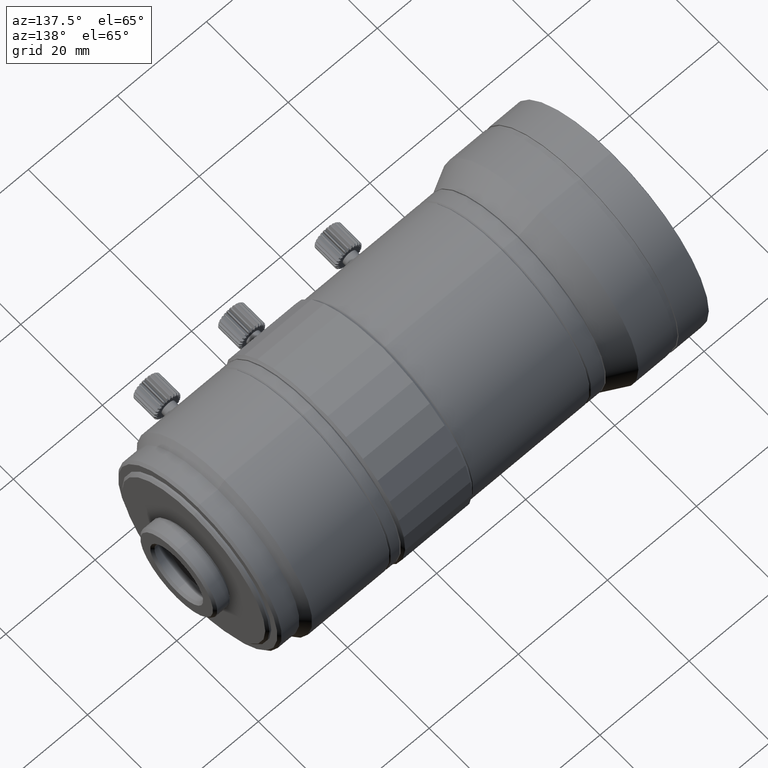
[diagram: clean part render]
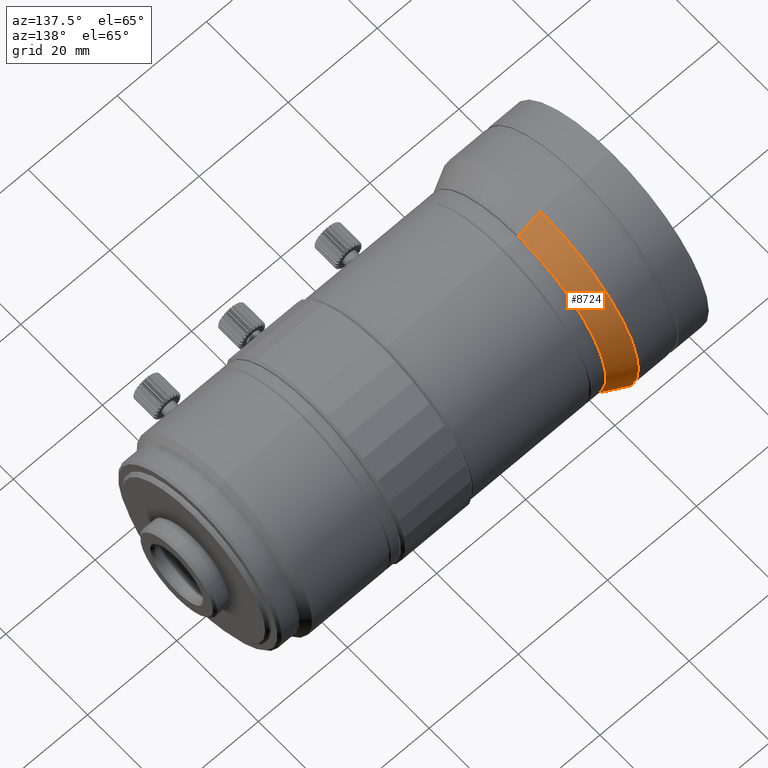
[diagram: same view with one face highlighted and labeled with its STEP entity id]
A machine part, auxiliary view. The second image highlights one B-rep face of the part: STEP entity #8724.
In plain terms, the highlighted conical surface has half-angle 26.565 deg.
Its self-contained STEP definition (entity closure, byte-faithful):
#15 = AXIS2_PLACEMENT_3D ( 'NONE', #1386, #14181, #7012 ) ;
#168 = VECTOR ( 'NONE', #11317, 1000.000000000000000 ) ;
#984 = LINE ( 'NONE', #3070, #168 ) ;
#994 = CIRCLE ( 'NONE', #9368, 21.49999999999999289 ) ;
#1386 = CARTESIAN_POINT ( 'NONE',  ( -76.62999999999998124, 0.000000000000000000, 0.000000000000000000 ) ) ;
#1527 = DIRECTION ( 'NONE',  ( 0.000000000000000000, 0.000000000000000000, -1.000000000000000000 ) ) ;
#1582 = ORIENTED_EDGE ( 'NONE', *, *, #2226, .F. ) ;
#1746 = VERTEX_POINT ( 'NONE', #8385 ) ;
#2226 = EDGE_CURVE ( 'NONE', #14681, #11903, #13434, .T. ) ;
#3070 = CARTESIAN_POINT ( 'NONE',  ( -76.62999999999998124, 2.632990618166808052E-15, -21.49999999999999289 ) ) ;
#4273 = CARTESIAN_POINT ( 'NONE',  ( -81.63000000000000966, 0.000000000000000000, 23.99999999999999645 ) ) ;
#4339 = CARTESIAN_POINT ( 'NONE',  ( -81.63000000000000966, 0.000000000000000000, 0.000000000000000000 ) ) ;
#4833 = CARTESIAN_POINT ( 'NONE',  ( -76.62999999999998124, 0.000000000000000000, 0.000000000000000000 ) ) ;
#4877 = ORIENTED_EDGE ( 'NONE', *, *, #7840, .F. ) ;
#5422 = CARTESIAN_POINT ( 'NONE',  ( -76.62999999999998124, 0.000000000000000000, 21.49999999999999289 ) ) ;
#6662 = CONICAL_SURFACE ( 'NONE', #15, 21.49999999999999289, 0.4636476090008044282 ) ;
#7012 = DIRECTION ( 'NONE',  ( 0.000000000000000000, 0.000000000000000000, 1.000000000000000000 ) ) ;
#7559 = CIRCLE ( 'NONE', #13477, 23.99999999999999645 ) ;
#7807 = DIRECTION ( 'NONE',  ( 0.000000000000000000, 0.000000000000000000, -1.000000000000000000 ) ) ;
#7840 = EDGE_CURVE ( 'NONE', #8382, #14681, #994, .T. ) ;
#8242 = FACE_OUTER_BOUND ( 'NONE', #13085, .T. ) ;
#8382 = VERTEX_POINT ( 'NONE', #14134 ) ;
#8385 = CARTESIAN_POINT ( 'NONE',  ( -81.63000000000000966, 2.939152317953647500E-15, -23.99999999999999645 ) ) ;
#8482 = VECTOR ( 'NONE', #13666, 1000.000000000000000 ) ;
#8724 = ADVANCED_FACE ( 'NONE', ( #8242 ), #6662, .T. ) ;
#9368 = AXIS2_PLACEMENT_3D ( 'NONE', #4833, #11926, #1527 ) ;
#9895 = DIRECTION ( 'NONE',  ( 1.000000000000000000, -0.000000000000000000, -0.000000000000000000 ) ) ;
#11317 = DIRECTION ( 'NONE',  ( -0.8944271909999166326, 5.476786982642007755E-17, -0.4472135954999564289 ) ) ;
#11389 = CARTESIAN_POINT ( 'NONE',  ( -76.62999999999998124, 0.000000000000000000, 21.49999999999999289 ) ) ;
#11413 = ORIENTED_EDGE ( 'NONE', *, *, #13459, .T. ) ;
#11903 = VERTEX_POINT ( 'NONE', #4273 ) ;
#11926 = DIRECTION ( 'NONE',  ( 1.000000000000000000, -0.000000000000000000, -0.000000000000000000 ) ) ;
#13085 = EDGE_LOOP ( 'NONE', ( #4877, #11413, #14587, #1582 ) ) ;
#13434 = LINE ( 'NONE', #5422, #8482 ) ;
#13459 = EDGE_CURVE ( 'NONE', #8382, #1746, #984, .T. ) ;
#13477 = AXIS2_PLACEMENT_3D ( 'NONE', #4339, #9895, #7807 ) ;
#13666 = DIRECTION ( 'NONE',  ( -0.8944271909999166326, 0.000000000000000000, 0.4472135954999564289 ) ) ;
#13705 = EDGE_CURVE ( 'NONE', #1746, #11903, #7559, .T. ) ;
#14134 = CARTESIAN_POINT ( 'NONE',  ( -76.62999999999998124, 2.786071468060227776E-15, -21.49999999999999289 ) ) ;
#14181 = DIRECTION ( 'NONE',  ( -1.000000000000000000, 0.000000000000000000, 0.000000000000000000 ) ) ;
#14587 = ORIENTED_EDGE ( 'NONE', *, *, #13705, .T. ) ;
#14681 = VERTEX_POINT ( 'NONE', #11389 ) ;